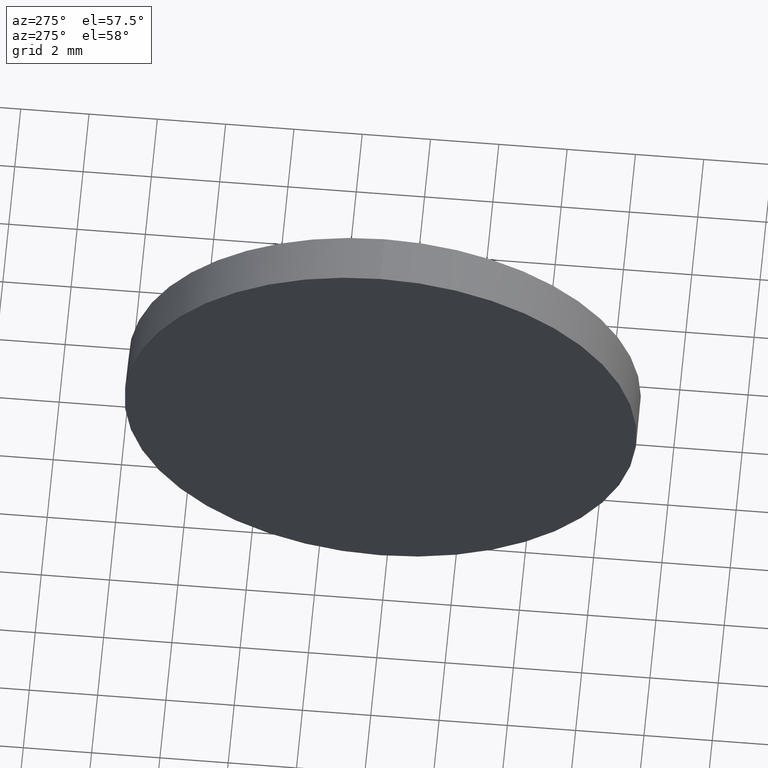
[diagram: clean part render]
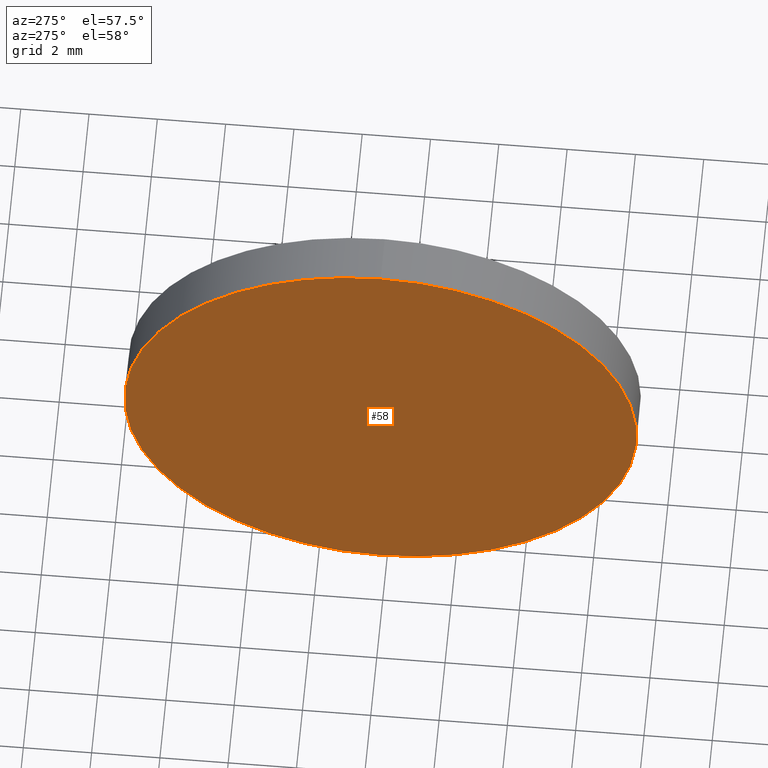
[diagram: same view with one face highlighted and labeled with its STEP entity id]
A machine part, auxiliary view. The second image highlights one B-rep face of the part: STEP entity #58.
In plain terms, the highlighted planar face has unit normal (1, 0, 0).
Its self-contained STEP definition (entity closure, byte-faithful):
#4 = CARTESIAN_POINT ( 'NONE',  ( 649.3368580883349100, 150.1803494272311400, 0.0000000000000000000 ) ) ;
#15 = AXIS2_PLACEMENT_3D ( 'NONE', #90, #92, #169 ) ;
#16 = ORIENTED_EDGE ( 'NONE', *, *, #54, .T. ) ;
#28 = DIRECTION ( 'NONE',  ( -1.000000000000000000, -0.0000000000000000000, -0.0000000000000000000 ) ) ;
#43 = VERTEX_POINT ( 'NONE', #170 ) ;
#54 = EDGE_CURVE ( 'NONE', #43, #57, #127, .T. ) ;
#57 = VERTEX_POINT ( 'NONE', #140 ) ;
#58 = ADVANCED_FACE ( 'NONE', ( #179 ), #122, .F. ) ;
#62 = DIRECTION ( 'NONE',  ( 0.0000000000000000000, 0.0000000000000000000, 1.000000000000000000 ) ) ;
#90 = CARTESIAN_POINT ( 'NONE',  ( 649.3368580883349100, 150.1803494272311400, 0.0000000000000000000 ) ) ;
#92 = DIRECTION ( 'NONE',  ( 1.000000000000000000, 0.0000000000000000000, 0.0000000000000000000 ) ) ;
#94 = AXIS2_PLACEMENT_3D ( 'NONE', #4, #148, #111 ) ;
#101 = ORIENTED_EDGE ( 'NONE', *, *, #118, .T. ) ;
#111 = DIRECTION ( 'NONE',  ( 0.0000000000000000000, 0.0000000000000000000, 1.000000000000000000 ) ) ;
#118 = EDGE_CURVE ( 'NONE', #57, #43, #150, .T. ) ;
#122 = PLANE ( 'NONE',  #15 ) ;
#127 = CIRCLE ( 'NONE', #153, 7.500000000000007100 ) ;
#139 = CARTESIAN_POINT ( 'NONE',  ( 649.3368580883349100, 150.1803494272311400, 0.0000000000000000000 ) ) ;
#140 = CARTESIAN_POINT ( 'NONE',  ( 649.3368580883349100, 150.1803494272311400, -7.500000000000007100 ) ) ;
#148 = DIRECTION ( 'NONE',  ( -1.000000000000000000, -0.0000000000000000000, -0.0000000000000000000 ) ) ;
#150 = CIRCLE ( 'NONE', #94, 7.500000000000007100 ) ;
#153 = AXIS2_PLACEMENT_3D ( 'NONE', #139, #28, #62 ) ;
#157 = EDGE_LOOP ( 'NONE', ( #16, #101 ) ) ;
#169 = DIRECTION ( 'NONE',  ( 0.0000000000000000000, 0.0000000000000000000, -1.000000000000000000 ) ) ;
#170 = CARTESIAN_POINT ( 'NONE',  ( 649.3368580883349100, 150.1803494272311400, 7.500000000000007100 ) ) ;
#179 = FACE_OUTER_BOUND ( 'NONE', #157, .T. ) ;